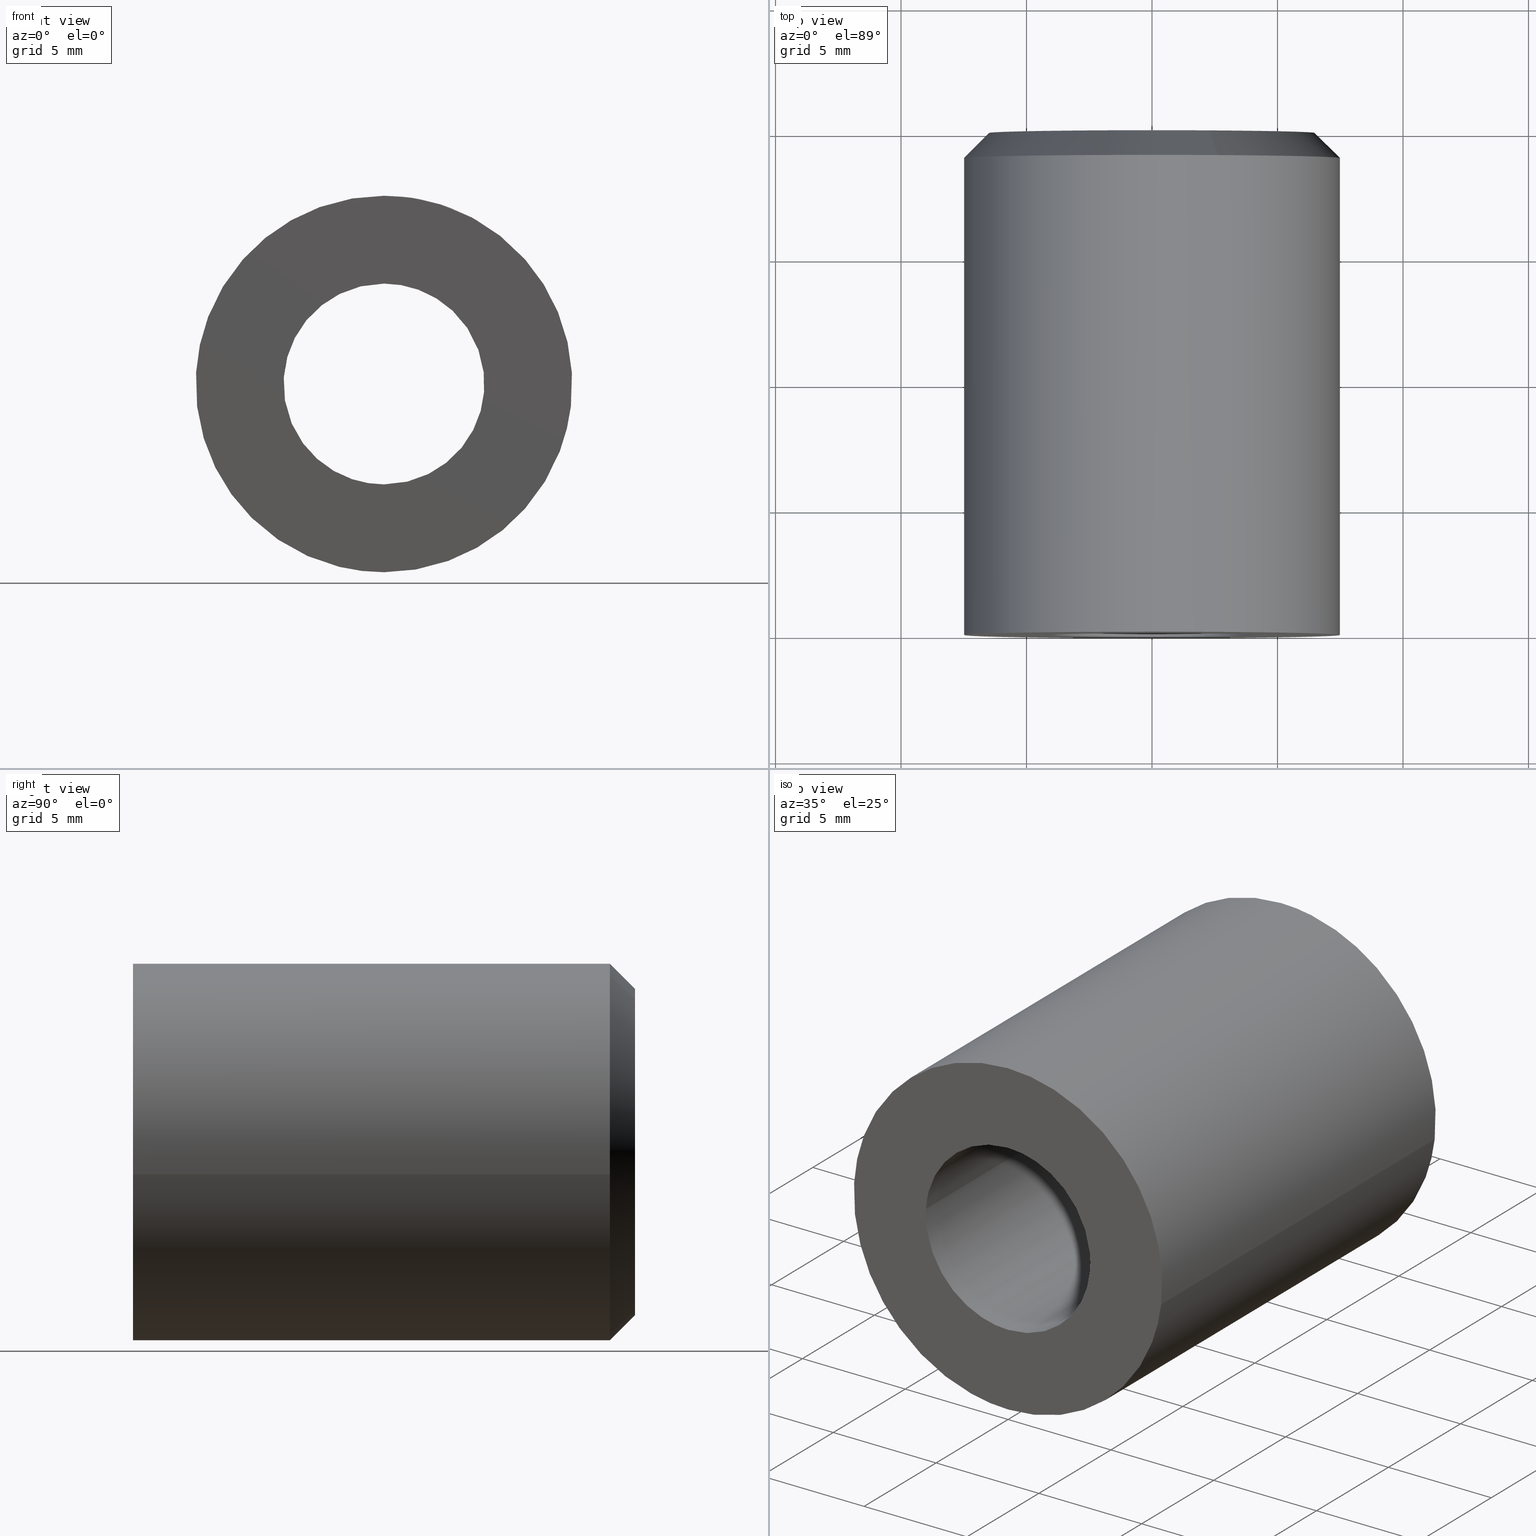
[diagram: canonical four-view strip — front | top / right | iso, engineering-drawing reading convention]
A machine part, canonical four-view strip (front | top / right | iso — engineering-drawing reading convention). The complete STEP part file that produces these views, byte-faithful:
ISO-10303-21;
HEADER;
/****************************************************************
 * Generated by software with PDE/Lib inside                    *
 * PDElib Version 4.4.1-0003, patched  Thursday August 19 11:58 *
 * International Technegroup Inc. (www.iti-oh.com)              *
 ****************************************************************/
FILE_DESCRIPTION((''),'2;1');
FILE_NAME('','2005-12-14T16:28:31',(''),(''),'','CADfix','');
FILE_SCHEMA(('AUTOMOTIVE_DESIGN'));
ENDSEC;
DATA;
#5=APPLICATION_CONTEXT('automotive design');
#6=APPLICATION_PROTOCOL_DEFINITION('Draft International Standard','automotive_design',1998,#5);
#7=PRODUCT_CONTEXT('None',#5,'mechanical');
#8=PRODUCT('boss','','None',(#7));
#9=PRODUCT_RELATED_PRODUCT_CATEGORY('part','description',(#8));
#10=PRODUCT_DEFINITION_FORMATION('None','None',#8);
#11=PRODUCT_DEFINITION_CONTEXT('part definition',#5,'design');
#12=PRODUCT_DEFINITION('None','None',#10,#11);
#18=(NAMED_UNIT(*)PLANE_ANGLE_UNIT()SI_UNIT($,.RADIAN.));
#19=DIMENSIONAL_EXPONENTS(0.0,0.0,0.0,0.0,0.0,0.0,0.0);
#20=PLANE_ANGLE_MEASURE_WITH_UNIT(PLANE_ANGLE_MEASURE(0.017453292500000),#18);
#24=(CONVERSION_BASED_UNIT('DEGREE',#20)NAMED_UNIT(#19)PLANE_ANGLE_UNIT());
#28=(NAMED_UNIT(*)SI_UNIT($,.STERADIAN.)SOLID_ANGLE_UNIT());
#32=(LENGTH_UNIT()NAMED_UNIT(*)SI_UNIT(.MILLI.,.METRE.));
#34=UNCERTAINTY_MEASURE_WITH_UNIT(LENGTH_MEASURE(0.001000000000000),#32,'DISTANCE_ACCURACY_VALUE','');
#36=(GEOMETRIC_REPRESENTATION_CONTEXT(3)GLOBAL_UNCERTAINTY_ASSIGNED_CONTEXT((#34))GLOBAL_UNIT_ASSIGNED_CONTEXT((#24,#28,#32))REPRESENTATION_CONTEXT('None','None'));
#37=AXIS2_PLACEMENT_3D('',#38,#39,#40);
#38=CARTESIAN_POINT('',(0.0,0.0,0.0));
#39=DIRECTION('',(0.0,0.0,1.0));
#40=DIRECTION('',(1.0,0.0,0.0));
#41=ADVANCED_BREP_SHAPE_REPRESENTATION('',(#37,#753),#36);
#42=PRODUCT_DEFINITION_SHAPE('','',#12);
#43=SHAPE_DEFINITION_REPRESENTATION(#42,#41);
#44=CARTESIAN_POINT('',(2.276726384185428,20.025000000000006,6.061529672578851));
#45=CARTESIAN_POINT('',(1.366156699857268,20.025000000000009,6.403542025389346));
#46=CARTESIAN_POINT('',(0.395289293488199,20.024999999999999,6.462922819781583));
#47=CARTESIAN_POINT('',(-6.067633526293384,20.025000000000009,6.858212113269781));
#48=CARTESIAN_POINT('',(-6.462922819781583,20.024999999999999,0.395289293488199));
#49=CARTESIAN_POINT('',(2.646145018530576,18.974374999999991,7.045065520031083));
#50=CARTESIAN_POINT('',(1.587827492565770,18.974374999999998,7.442572348234865));
#51=CARTESIAN_POINT('',(0.459428415337008,18.974374999999998,7.511588192373565));
#52=CARTESIAN_POINT('',(-7.052159777036557,18.974375000000002,7.971016607710572));
#53=CARTESIAN_POINT('',(-7.511588192373565,18.974374999999998,0.459428415337008));
#61=(BOUNDED_SURFACE()B_SPLINE_SURFACE(2,1,((#44,#49),(#45,#50),(#46,#51),(#47,#52),(#48,#53)),.UNSPECIFIED.,.F.,.F.,.U.)B_SPLINE_SURFACE_WITH_KNOTS((3,2,3),(2,2),(0.0,2.493772752267220,14.962636513603320),(0.0,1.0),.UNSPECIFIED.)GEOMETRIC_REPRESENTATION_ITEM()RATIONAL_B_SPLINE_SURFACE(((0.906274169979695,0.906274169979695),(0.941421356237309,0.941421356237309),(1.0,1.0),(0.707106781186548,0.707106781186548),(1.0,1.0)))REPRESENTATION_ITEM('')SURFACE());
#62=CARTESIAN_POINT('',(2.637134807943279,18.999999999999371,7.021076840823168));
#63=VERTEX_POINT('',#62);
#64=CARTESIAN_POINT('',(0.0,19.0,7.500000000000000));
#65=VERTEX_POINT('',#64);
#66=CARTESIAN_POINT('',(2.637134807943280,18.999999999999368,7.021076840823168));
#67=CARTESIAN_POINT('',(1.362055395507618,19.0,7.500000000000000));
#68=CARTESIAN_POINT('',(0.0,19.0,7.500000000000000));
#76=(BOUNDED_CURVE()B_SPLINE_CURVE(2,(#66,#67,#68),.UNSPECIFIED.,.F.,.U.)B_SPLINE_CURVE_WITH_KNOTS((3,3),(0.440284170898627,0.500000000000000),.UNSPECIFIED.)CURVE()GEOMETRIC_REPRESENTATION_ITEM()RATIONAL_B_SPLINE_CURVE((0.893499554635421,0.930038554401540,1.0))REPRESENTATION_ITEM(''));
#77=EDGE_CURVE('',#63,#65,#76,.T.);
#78=ORIENTED_EDGE('',*,*,#77,.F.);
#79=CARTESIAN_POINT('',(2.285516833559040,19.999999999998650,6.084933262044523));
#80=VERTEX_POINT('',#79);
#81=CARTESIAN_POINT('',(2.285516833559040,19.999999999998650,6.084933262044523));
#82=CARTESIAN_POINT('',(2.637134807943279,18.999999999999371,7.021076840823168));
#83=QUASI_UNIFORM_CURVE('',1,(#81,#82),.UNSPECIFIED.,.F.,.U.);
#84=EDGE_CURVE('',#80,#63,#83,.T.);
#85=ORIENTED_EDGE('',*,*,#84,.F.);
#86=CARTESIAN_POINT('',(0.0,20.0,6.500000000000000));
#87=VERTEX_POINT('',#86);
#88=CARTESIAN_POINT('',(2.285516833559040,19.999999999998646,6.084933262044523));
#89=CARTESIAN_POINT('',(1.180448009448671,20.0,6.500000000000001));
#90=CARTESIAN_POINT('',(0.0,20.0,6.500000000000000));
#98=(BOUNDED_CURVE()B_SPLINE_CURVE(2,(#88,#89,#90),.UNSPECIFIED.,.F.,.U.)B_SPLINE_CURVE_WITH_KNOTS((3,3),(0.440284170898217,0.500000000000000),.UNSPECIFIED.)CURVE()GEOMETRIC_REPRESENTATION_ITEM()RATIONAL_B_SPLINE_CURVE((0.893499554634918,0.930038554401058,1.0))REPRESENTATION_ITEM(''));
#99=EDGE_CURVE('',#80,#87,#98,.T.);
#100=ORIENTED_EDGE('',*,*,#99,.T.);
#101=CARTESIAN_POINT('',(-6.487876189743154,19.999999999998099,0.396815506990952));
#102=VERTEX_POINT('',#101);
#103=CARTESIAN_POINT('',(0.0,20.0,6.500000000000000));
#104=CARTESIAN_POINT('',(-6.114589434860092,19.999999999999996,6.500000000000000));
#105=CARTESIAN_POINT('',(-6.487876189743154,19.999999999998103,0.396815506990952));
#113=(BOUNDED_CURVE()B_SPLINE_CURVE(2,(#103,#104,#105),.UNSPECIFIED.,.F.,.U.)B_SPLINE_CURVE_WITH_KNOTS((3,3),(0.500000000000000,0.739332962241210),.UNSPECIFIED.)CURVE()GEOMETRIC_REPRESENTATION_ITEM()RATIONAL_B_SPLINE_CURVE((1.0,0.719603993284054,0.976072041671576))REPRESENTATION_ITEM(''));
#114=EDGE_CURVE('',#87,#102,#113,.T.);
#115=ORIENTED_EDGE('',*,*,#114,.T.);
#116=CARTESIAN_POINT('',(-7.486011170110235,19.000000004526569,0.457860997528976));
#117=VERTEX_POINT('',#116);
#118=CARTESIAN_POINT('',(-6.487876189743154,19.999999999998099,0.396815506990952));
#119=CARTESIAN_POINT('',(-7.486011170110235,19.000000004526569,0.457860997528976));
#120=QUASI_UNIFORM_CURVE('',1,(#118,#119),.UNSPECIFIED.,.F.,.U.);
#121=EDGE_CURVE('',#102,#117,#120,.T.);
#122=ORIENTED_EDGE('',*,*,#121,.T.);
#123=CARTESIAN_POINT('',(0.0,19.0,7.500000000000000));
#124=CARTESIAN_POINT('',(-7.055298380458022,18.999999999999996,7.499999999999999));
#125=CARTESIAN_POINT('',(-7.486011170110235,19.000000004526569,0.457860997528976));
#133=(BOUNDED_CURVE()B_SPLINE_CURVE(2,(#123,#124,#125),.UNSPECIFIED.,.F.,.U.)B_SPLINE_CURVE_WITH_KNOTS((3,3),(0.500000000000000,0.739333032512299),.UNSPECIFIED.)CURVE()GEOMETRIC_REPRESENTATION_ITEM()RATIONAL_B_SPLINE_CURVE((1.0,0.719603910956352,0.976072192275943))REPRESENTATION_ITEM(''));
#134=EDGE_CURVE('',#65,#117,#133,.T.);
#135=ORIENTED_EDGE('',*,*,#134,.F.);
#136=EDGE_LOOP('',(#78,#85,#100,#115,#122,#135));
#137=FACE_OUTER_BOUND('',#136,.T.);
#138=ADVANCED_FACE('',(#137),#61,.T.);
#139=CARTESIAN_POINT('',(-6.462922819781583,20.024999999999999,0.395289293488199));
#140=CARTESIAN_POINT('',(-6.858212113269783,20.025000000000009,-6.067633526293386));
#141=CARTESIAN_POINT('',(-0.395289293488199,20.024999999999999,-6.462922819781583));
#142=CARTESIAN_POINT('',(6.067633526293384,20.025000000000009,-6.858212113269783));
#143=CARTESIAN_POINT('',(6.462922819781583,20.024999999999999,-0.395289293488199));
#144=CARTESIAN_POINT('',(6.754961018078985,20.024999999999999,4.379493042174844));
#145=CARTESIAN_POINT('',(2.276726384185428,20.025000000000006,6.061529672578851));
#146=CARTESIAN_POINT('',(-7.511588192373565,18.974374999999998,0.459428415337008));
#147=CARTESIAN_POINT('',(-7.971016607710572,18.974375000000002,-7.052159777036557));
#148=CARTESIAN_POINT('',(-0.459428415337008,18.974374999999998,-7.511588192373565));
#149=CARTESIAN_POINT('',(7.052159777036557,18.974375000000002,-7.971016607710572));
#150=CARTESIAN_POINT('',(7.511588192373565,18.974374999999998,-0.459428415337009));
#151=CARTESIAN_POINT('',(7.851012125356095,18.974375000000002,5.090103834056696));
#152=CARTESIAN_POINT('',(2.646145018530576,18.974374999999991,7.045065520031083));
#160=(BOUNDED_SURFACE()B_SPLINE_SURFACE(2,1,((#139,#146),(#140,#147),(#141,#148),(#142,#149),(#143,#150),(#144,#151),(#145,#152)),.UNSPECIFIED.,.F.,.F.,.U.)B_SPLINE_SURFACE_WITH_KNOTS((3,2,2,3),(2,2),(0.0,12.468863761336101,24.937727522672201,34.912818531741081),(0.0,1.0),.UNSPECIFIED.)GEOMETRIC_REPRESENTATION_ITEM()RATIONAL_B_SPLINE_SURFACE(((1.0,1.0),(0.707106781186548,0.707106781186548),(1.0,1.0),(0.707106781186548,0.707106781186548),(1.0,1.0),(0.765685424949238,0.765685424949238),(0.906274169979695,0.906274169979695)))REPRESENTATION_ITEM('')SURFACE());
#161=CARTESIAN_POINT('',(7.447571630219821,19.0,-0.885255224634380));
#162=VERTEX_POINT('',#161);
#163=CARTESIAN_POINT('',(7.447571630219821,19.000000000000004,-0.885255224634380));
#164=CARTESIAN_POINT('',(7.500000000000001,19.0,-0.444180121628244));
#165=CARTESIAN_POINT('',(7.500000000000000,19.0,-1.836910E-016));
#166=CARTESIAN_POINT('',(7.500000000000000,19.0,5.194571967698237));
#167=CARTESIAN_POINT('',(2.637134807943279,18.999999999999361,7.021076840823170));
#175=(BOUNDED_CURVE()B_SPLINE_CURVE(2,(#163,#164,#165,#166,#167),.UNSPECIFIED.,.F.,.U.)B_SPLINE_CURVE_WITH_KNOTS((3,2,3),(0.229562508355085,0.250000000000000,0.440284170898627),.UNSPECIFIED.)CURVE()GEOMETRIC_REPRESENTATION_ITEM()RATIONAL_B_SPLINE_CURVE((0.956026822474627,0.976055989150591,1.0,0.777068226785008,0.893499554635421))REPRESENTATION_ITEM(''));
#176=EDGE_CURVE('',#162,#63,#175,.T.);
#177=ORIENTED_EDGE('',*,*,#176,.F.);
#178=CARTESIAN_POINT('',(0.0,19.0,-7.500000000000000));
#179=VERTEX_POINT('',#178);
#180=CARTESIAN_POINT('',(0.0,19.0,-7.500000000000000));
#181=CARTESIAN_POINT('',(6.661310327508277,19.0,-7.500000000000000));
#182=CARTESIAN_POINT('',(7.447571630219821,19.000000000000004,-0.885255224634380));
#190=(BOUNDED_CURVE()B_SPLINE_CURVE(2,(#180,#181,#182),.UNSPECIFIED.,.F.,.U.)B_SPLINE_CURVE_WITH_KNOTS((3,3),(0.0,0.229562508355085),.UNSPECIFIED.)CURVE()GEOMETRIC_REPRESENTATION_ITEM()RATIONAL_B_SPLINE_CURVE((1.0,0.731050792035956,0.956026822474627))REPRESENTATION_ITEM(''));
#191=EDGE_CURVE('',#179,#162,#190,.T.);
#192=ORIENTED_EDGE('',*,*,#191,.F.);
#193=CARTESIAN_POINT('',(-7.486011170110235,19.000000004526569,0.457860997528976));
#194=CARTESIAN_POINT('',(-7.500000000000001,19.0,0.229144196112307));
#195=CARTESIAN_POINT('',(-7.500000000000000,19.0,-1.836910E-016));
#196=CARTESIAN_POINT('',(-7.500000000000000,18.999999999999996,-7.500000000000000));
#197=CARTESIAN_POINT('',(0.0,19.0,-7.500000000000000));
#205=(BOUNDED_CURVE()B_SPLINE_CURVE(2,(#193,#194,#195,#196,#197),.UNSPECIFIED.,.F.,.U.)B_SPLINE_CURVE_WITH_KNOTS((3,2,3),(0.739333032512299,0.750000000000000,1.0),.UNSPECIFIED.)CURVE()GEOMETRIC_REPRESENTATION_ITEM()RATIONAL_B_SPLINE_CURVE((0.976072192275943,0.987502870230195,1.0,0.707106781186547,1.0))REPRESENTATION_ITEM(''));
#206=EDGE_CURVE('',#117,#179,#205,.T.);
#207=ORIENTED_EDGE('',*,*,#206,.F.);
#208=ORIENTED_EDGE('',*,*,#121,.F.);
#209=CARTESIAN_POINT('',(0.0,20.0,-6.500000000000000));
#210=VERTEX_POINT('',#209);
#211=CARTESIAN_POINT('',(-6.487876189743154,19.999999999998099,0.396815506990952));
#212=CARTESIAN_POINT('',(-6.500000000000000,20.000000000000004,0.198592961455134));
#213=CARTESIAN_POINT('',(-6.500000000000000,20.0,-1.836910E-016));
#214=CARTESIAN_POINT('',(-6.500000000000000,20.0,-6.500000000000000));
#215=CARTESIAN_POINT('',(0.0,20.0,-6.500000000000000));
#223=(BOUNDED_CURVE()B_SPLINE_CURVE(2,(#211,#212,#213,#214,#215),.UNSPECIFIED.,.F.,.U.)B_SPLINE_CURVE_WITH_KNOTS((3,2,3),(0.739332962241209,0.750000000000000,1.0),.UNSPECIFIED.)CURVE()GEOMETRIC_REPRESENTATION_ITEM()RATIONAL_B_SPLINE_CURVE((0.976072041671575,0.987502787902493,1.0,0.707106781186547,1.0))REPRESENTATION_ITEM(''));
#224=EDGE_CURVE('',#102,#210,#223,.T.);
#225=ORIENTED_EDGE('',*,*,#224,.T.);
#226=CARTESIAN_POINT('',(0.0,20.0,-6.500000000000000));
#227=CARTESIAN_POINT('',(6.500000000000000,20.0,-6.500000000000000));
#228=CARTESIAN_POINT('',(6.500000000000000,20.0,-1.836910E-016));
#229=CARTESIAN_POINT('',(6.500000000000001,20.000000000000007,4.501962371992629));
#230=CARTESIAN_POINT('',(2.285516833559040,19.999999999998654,6.084933262044523));
#238=(BOUNDED_CURVE()B_SPLINE_CURVE(2,(#226,#227,#228,#229,#230),.UNSPECIFIED.,.F.,.U.)B_SPLINE_CURVE_WITH_KNOTS((3,2,3),(0.0,0.250000000000000,0.440284170898216),.UNSPECIFIED.)CURVE()GEOMETRIC_REPRESENTATION_ITEM()RATIONAL_B_SPLINE_CURVE((1.0,0.707106781186547,1.0,0.777068226785489,0.893499554634918))REPRESENTATION_ITEM(''));
#239=EDGE_CURVE('',#210,#80,#238,.T.);
#240=ORIENTED_EDGE('',*,*,#239,.T.);
#241=ORIENTED_EDGE('',*,*,#84,.T.);
#242=EDGE_LOOP('',(#177,#192,#207,#208,#225,#240,#241));
#243=FACE_OUTER_BOUND('',#242,.T.);
#244=ADVANCED_FACE('',(#243),#160,.T.);
#245=CARTESIAN_POINT('',(7.447571447727496,19.475000000000009,-0.885256759925689));
#246=CARTESIAN_POINT('',(7.472907115864541,19.475000000000012,-0.672110464784833));
#247=CARTESIAN_POINT('',(7.486010988164000,19.475000000000009,-0.457864046511427));
#248=CARTESIAN_POINT('',(7.943875034675429,19.475000000000009,7.028146941652573));
#249=CARTESIAN_POINT('',(0.457864046511427,19.475000000000009,7.486010988164000));
#250=CARTESIAN_POINT('',(-7.028146941652573,19.475000000000009,7.943875034675429));
#251=CARTESIAN_POINT('',(-7.486010988164000,19.475000000000009,0.457864046511427));
#252=CARTESIAN_POINT('',(7.447571447727496,-0.486874999999998,-0.885256759925689));
#253=CARTESIAN_POINT('',(7.472907115864541,-0.486874999999998,-0.672110464784833));
#254=CARTESIAN_POINT('',(7.486010988164000,-0.486874999999998,-0.457864046511427));
#255=CARTESIAN_POINT('',(7.943875034675429,-0.486874999999998,7.028146941652573));
#256=CARTESIAN_POINT('',(0.457864046511427,-0.486874999999998,7.486010988164000));
#257=CARTESIAN_POINT('',(-7.028146941652573,-0.486874999999998,7.943875034675429));
#258=CARTESIAN_POINT('',(-7.486010988164000,-0.486874999999998,0.457864046511427));
#266=(BOUNDED_SURFACE()B_SPLINE_SURFACE(2,1,((#245,#252),(#246,#253),(#247,#254),(#248,#255),(#249,#256),(#250,#257),(#251,#258)),.UNSPECIFIED.,.F.,.F.,.U.)B_SPLINE_SURFACE_WITH_KNOTS((3,2,2,3),(2,2),(0.0,0.497056274847715,12.923463146040559,25.349870017233410),(0.0,19.961875000000010),.UNSPECIFIED.)GEOMETRIC_REPRESENTATION_ITEM()RATIONAL_B_SPLINE_SURFACE(((0.977505800795127,0.977505800795127),(0.988284271247462,0.988284271247462),(1.0,1.0),(0.707106781186548,0.707106781186548),(1.0,1.0),(0.707106781186548,0.707106781186548),(1.0,1.0)))REPRESENTATION_ITEM('')SURFACE());
#267=ORIENTED_EDGE('',*,*,#176,.T.);
#268=ORIENTED_EDGE('',*,*,#77,.T.);
#269=ORIENTED_EDGE('',*,*,#134,.T.);
#270=CARTESIAN_POINT('',(-7.486011356600631,-3.557742E-016,0.457858022546224));
#271=VERTEX_POINT('',#270);
#272=CARTESIAN_POINT('',(-7.486011170110235,19.000000004526569,0.457860997528976));
#273=CARTESIAN_POINT('',(-7.486011356600631,-3.557742E-016,0.457858022546224));
#274=QUASI_UNIFORM_CURVE('',1,(#272,#273),.UNSPECIFIED.,.F.,.U.);
#275=EDGE_CURVE('',#117,#271,#274,.T.);
#276=ORIENTED_EDGE('',*,*,#275,.T.);
#277=CARTESIAN_POINT('',(0.0,-1.377682E-015,7.500000000000000));
#278=VERTEX_POINT('',#277);
#279=CARTESIAN_POINT('',(0.0,-1.377682E-015,7.500000000000000));
#280=CARTESIAN_POINT('',(-7.055301189773867,-1.377682E-015,7.500000000000000));
#281=CARTESIAN_POINT('',(-7.486011356600631,-3.557742E-016,0.457858022546224));
#289=(BOUNDED_CURVE()B_SPLINE_CURVE(2,(#279,#280,#281),.UNSPECIFIED.,.F.,.U.)B_SPLINE_CURVE_WITH_KNOTS((3,3),(0.500000000000000,0.739333101089743),.UNSPECIFIED.)CURVE()GEOMETRIC_REPRESENTATION_ITEM()RATIONAL_B_SPLINE_CURVE((1.0,0.719603830612879,0.976072339250594))REPRESENTATION_ITEM(''));
#290=EDGE_CURVE('',#278,#271,#289,.T.);
#291=ORIENTED_EDGE('',*,*,#290,.F.);
#292=CARTESIAN_POINT('',(7.447571628019151,-1.569064E-015,-0.885255243148447));
#293=VERTEX_POINT('',#292);
#294=CARTESIAN_POINT('',(7.447571628019152,-1.569064E-015,-0.885255243148447));
#295=CARTESIAN_POINT('',(7.500000000000000,-1.377682E-015,-0.444180130983140));
#296=CARTESIAN_POINT('',(7.500000000000000,-1.377682E-015,-1.836910E-016));
#297=CARTESIAN_POINT('',(7.500000000000000,-1.377682E-015,7.500000000000000));
#298=CARTESIAN_POINT('',(0.0,-1.377682E-015,7.500000000000000));
#306=(BOUNDED_CURVE()B_SPLINE_CURVE(2,(#294,#295,#296,#297,#298),.UNSPECIFIED.,.F.,.U.)B_SPLINE_CURVE_WITH_KNOTS((3,2,3),(0.229562507934956,0.250000000000000,0.500000000000000),.UNSPECIFIED.)CURVE()GEOMETRIC_REPRESENTATION_ITEM()RATIONAL_B_SPLINE_CURVE((0.956026821651157,0.976055988658380,1.0,0.707106781186547,1.0))REPRESENTATION_ITEM(''));
#307=EDGE_CURVE('',#293,#278,#306,.T.);
#308=ORIENTED_EDGE('',*,*,#307,.F.);
#309=CARTESIAN_POINT('',(7.447571630219821,19.0,-0.885255224634380));
#310=CARTESIAN_POINT('',(7.447571628019151,-1.569064E-015,-0.885255243148447));
#311=QUASI_UNIFORM_CURVE('',1,(#309,#310),.UNSPECIFIED.,.F.,.U.);
#312=EDGE_CURVE('',#162,#293,#311,.T.);
#313=ORIENTED_EDGE('',*,*,#312,.F.);
#314=EDGE_LOOP('',(#267,#268,#269,#276,#291,#308,#313));
#315=FACE_OUTER_BOUND('',#314,.T.);
#316=ADVANCED_FACE('',(#315),#266,.T.);
#317=CARTESIAN_POINT('',(-7.486010988164000,19.475000000000009,0.457864046511427));
#318=CARTESIAN_POINT('',(-7.943875034675429,19.475000000000009,-7.028146941652573));
#319=CARTESIAN_POINT('',(-0.457864046511427,19.475000000000009,-7.486010988164000));
#320=CARTESIAN_POINT('',(6.611576181296258,19.475000000000009,-7.918396475493956));
#321=CARTESIAN_POINT('',(7.447571447727496,19.475000000000009,-0.885256759925689));
#322=CARTESIAN_POINT('',(-7.486010988164000,-0.486874999999998,0.457864046511427));
#323=CARTESIAN_POINT('',(-7.943875034675429,-0.486874999999998,-7.028146941652573));
#324=CARTESIAN_POINT('',(-0.457864046511427,-0.486874999999998,-7.486010988164000));
#325=CARTESIAN_POINT('',(6.611576181296258,-0.486874999999998,-7.918396475493956));
#326=CARTESIAN_POINT('',(7.447571447727496,-0.486874999999998,-0.885256759925689));
#334=(BOUNDED_SURFACE()B_SPLINE_SURFACE(2,1,((#317,#322),(#318,#323),(#319,#324),(#320,#325),(#321,#326)),.UNSPECIFIED.,.F.,.F.,.U.)B_SPLINE_SURFACE_WITH_KNOTS((3,2,3),(2,2),(0.0,12.426406871192849,24.355757467537980),(0.0,19.961875000000010),.UNSPECIFIED.)GEOMETRIC_REPRESENTATION_ITEM()RATIONAL_B_SPLINE_SURFACE(((1.0,1.0),(0.707106781186548,0.707106781186548),(1.0,1.0),(0.718822509939086,0.718822509939086),(0.977505800795127,0.977505800795127)))REPRESENTATION_ITEM('')SURFACE());
#335=ORIENTED_EDGE('',*,*,#191,.T.);
#336=ORIENTED_EDGE('',*,*,#312,.T.);
#337=CARTESIAN_POINT('',(0.0,-1.377682E-015,-7.500000000000000));
#338=VERTEX_POINT('',#337);
#339=CARTESIAN_POINT('',(0.0,-1.377682E-015,-7.500000000000000));
#340=CARTESIAN_POINT('',(6.661310310832219,-1.377682E-015,-7.500000000000002));
#341=CARTESIAN_POINT('',(7.447571628019152,-1.569064E-015,-0.885255243148447));
#349=(BOUNDED_CURVE()B_SPLINE_CURVE(2,(#339,#340,#341),.UNSPECIFIED.,.F.,.U.)B_SPLINE_CURVE_WITH_KNOTS((3,3),(0.0,0.229562507934956),.UNSPECIFIED.)CURVE()GEOMETRIC_REPRESENTATION_ITEM()RATIONAL_B_SPLINE_CURVE((1.0,0.731050792528168,0.956026821651157))REPRESENTATION_ITEM(''));
#350=EDGE_CURVE('',#338,#293,#349,.T.);
#351=ORIENTED_EDGE('',*,*,#350,.F.);
#352=CARTESIAN_POINT('',(-7.486011356600631,-3.557742E-016,0.457858022546224));
#353=CARTESIAN_POINT('',(-7.500000000000000,-1.377682E-015,0.229142704311694));
#354=CARTESIAN_POINT('',(-7.500000000000000,-1.377682E-015,-1.836910E-016));
#355=CARTESIAN_POINT('',(-7.500000000000000,-1.377682E-015,-7.500000000000000));
#356=CARTESIAN_POINT('',(0.0,-1.377682E-015,-7.500000000000000));
#364=(BOUNDED_CURVE()B_SPLINE_CURVE(2,(#352,#353,#354,#355,#356),.UNSPECIFIED.,.F.,.U.)B_SPLINE_CURVE_WITH_KNOTS((3,2,3),(0.739333101089743,0.750000000000000,1.0),.UNSPECIFIED.)CURVE()GEOMETRIC_REPRESENTATION_ITEM()RATIONAL_B_SPLINE_CURVE((0.976072339250594,0.987502950573668,1.0,0.707106781186547,1.0))REPRESENTATION_ITEM(''));
#365=EDGE_CURVE('',#271,#338,#364,.T.);
#366=ORIENTED_EDGE('',*,*,#365,.F.);
#367=ORIENTED_EDGE('',*,*,#275,.F.);
#368=ORIENTED_EDGE('',*,*,#206,.T.);
#369=EDGE_LOOP('',(#335,#336,#351,#366,#367,#368));
#370=FACE_OUTER_BOUND('',#369,.T.);
#371=ADVANCED_FACE('',(#370),#334,.T.);
#372=CARTESIAN_POINT('',(3.980315739117261,20.168412500000002,0.400338886225068));
#373=CARTESIAN_POINT('',(3.977103421615057,20.168412500000009,0.428308385659948));
#374=CARTESIAN_POINT('',(3.591260610344325,20.168412500000002,3.787823839652829));
#375=CARTESIAN_POINT('',(0.244194158139428,20.168412500000009,3.992539193687467));
#376=CARTESIAN_POINT('',(-3.748345035548039,20.168412499999999,4.236733351826894));
#377=CARTESIAN_POINT('',(-3.994158025686370,20.168412500000013,0.217726488917307));
#378=CARTESIAN_POINT('',(-3.995767991604379,20.168412500000002,0.191403778836379));
#379=CARTESIAN_POINT('',(3.980315739117261,-0.504210312500000,0.400338886225068));
#380=CARTESIAN_POINT('',(3.977103421615057,-0.504210312500000,0.428308385659948));
#381=CARTESIAN_POINT('',(3.591260610344325,-0.504210312500000,3.787823839652829));
#382=CARTESIAN_POINT('',(0.244194158139428,-0.504210312500000,3.992539193687467));
#383=CARTESIAN_POINT('',(-3.748345035548039,-0.504210312500000,4.236733351826894));
#384=CARTESIAN_POINT('',(-3.994158025686370,-0.504210312500000,0.217726488917307));
#385=CARTESIAN_POINT('',(-3.995767991604379,-0.504210312500000,0.191403778836379));
#393=(BOUNDED_SURFACE()B_SPLINE_SURFACE(2,1,((#372,#379),(#373,#380),(#374,#381),(#375,#382),(#376,#383),(#377,#384),(#378,#385)),.UNSPECIFIED.,.F.,.F.,.U.)B_SPLINE_SURFACE_WITH_KNOTS((3,1,2,1,3),(2,2),(0.0,0.062301489036522,5.894428447249697,12.521845445219220,12.584150027941480),(0.0,20.672622812500009),.UNSPECIFIED.)GEOMETRIC_REPRESENTATION_ITEM()RATIONAL_B_SPLINE_SURFACE(((0.942326063697294,0.942326063697294),(0.940233507941946,0.940233507941946),(0.742253967444162,0.742253967444162),(1.0,1.0),(0.707106781186548,0.707106781186548),(1.002753499558869,1.002753499558869),(1.005506999117739,1.005506999117739)))REPRESENTATION_ITEM('')SURFACE());
#394=CARTESIAN_POINT('',(3.973876773741819,19.676500000000001,0.456402658970466));
#395=VERTEX_POINT('',#394);
#396=CARTESIAN_POINT('',(0.0,19.676500000000001,4.0));
#397=VERTEX_POINT('',#396);
#398=CARTESIAN_POINT('',(3.973876773741819,19.676499999999994,0.456402658970466));
#399=CARTESIAN_POINT('',(3.566892022859347,19.676499999999994,4.000000000000001));
#400=CARTESIAN_POINT('',(0.0,19.676500000000001,4.0));
#408=(BOUNDED_CURVE()B_SPLINE_CURVE(2,(#398,#399,#400),.UNSPECIFIED.,.F.,.U.)B_SPLINE_CURVE_WITH_KNOTS((3,3),(0.269767755877378,0.500000000000000),.UNSPECIFIED.)CURVE()GEOMETRIC_REPRESENTATION_ITEM()RATIONAL_B_SPLINE_CURVE((0.957343736459148,0.730266147777123,1.0))REPRESENTATION_ITEM(''));
#409=EDGE_CURVE('',#395,#397,#408,.T.);
#410=ORIENTED_EDGE('',*,*,#409,.F.);
#411=CARTESIAN_POINT('',(3.973877159715840,4.142001E-016,0.456399298287494));
#412=VERTEX_POINT('',#411);
#413=CARTESIAN_POINT('',(3.973876773741819,19.676500000000001,0.456402658970466));
#414=CARTESIAN_POINT('',(3.973877159715840,4.142001E-016,0.456399298287494));
#415=QUASI_UNIFORM_CURVE('',1,(#413,#414),.UNSPECIFIED.,.F.,.U.);
#416=EDGE_CURVE('',#395,#412,#415,.T.);
#417=ORIENTED_EDGE('',*,*,#416,.T.);
#418=CARTESIAN_POINT('',(0.0,0.0,4.0));
#419=VERTEX_POINT('',#418);
#420=CARTESIAN_POINT('',(3.973877159715840,4.142001E-016,0.456399298287494));
#421=CARTESIAN_POINT('',(3.566895059196512,0.0,4.0));
#422=CARTESIAN_POINT('',(0.0,0.0,4.0));
#430=(BOUNDED_CURVE()B_SPLINE_CURVE(2,(#420,#421,#422),.UNSPECIFIED.,.F.,.U.)B_SPLINE_CURVE_WITH_KNOTS((3,3),(0.269767612755097,0.500000000000000),.UNSPECIFIED.)CURVE()GEOMETRIC_REPRESENTATION_ITEM()RATIONAL_B_SPLINE_CURVE((0.957344018781762,0.730265980098941,1.0))REPRESENTATION_ITEM(''));
#431=EDGE_CURVE('',#412,#419,#430,.T.);
#432=ORIENTED_EDGE('',*,*,#431,.T.);
#433=CARTESIAN_POINT('',(-3.992539548623593,-6.938894E-016,0.244188354846649));
#434=VERTEX_POINT('',#433);
#435=CARTESIAN_POINT('',(0.0,0.0,4.0));
#436=CARTESIAN_POINT('',(-3.762829747240873,0.0,4.000000000000000));
#437=CARTESIAN_POINT('',(-3.992539548623593,-6.938894E-016,0.244188354846649));
#445=(BOUNDED_CURVE()B_SPLINE_CURVE(2,(#435,#436,#437),.UNSPECIFIED.,.F.,.U.)B_SPLINE_CURVE_WITH_KNOTS((3,3),(0.500000000000000,0.739333213044698),.UNSPECIFIED.)CURVE()GEOMETRIC_REPRESENTATION_ITEM()RATIONAL_B_SPLINE_CURVE((1.0,0.719603699449491,0.976072579191782))REPRESENTATION_ITEM(''));
#446=EDGE_CURVE('',#419,#434,#445,.T.);
#447=ORIENTED_EDGE('',*,*,#446,.T.);
#448=CARTESIAN_POINT('',(-3.992539218268482,19.676500000000001,0.244193756242729));
#449=VERTEX_POINT('',#448);
#450=CARTESIAN_POINT('',(-3.992539218268482,19.676500000000001,0.244193756242729));
#451=CARTESIAN_POINT('',(-3.992539548623593,-6.938894E-016,0.244188354846649));
#452=QUASI_UNIFORM_CURVE('',1,(#450,#451),.UNSPECIFIED.,.F.,.U.);
#453=EDGE_CURVE('',#449,#434,#452,.T.);
#454=ORIENTED_EDGE('',*,*,#453,.F.);
#455=CARTESIAN_POINT('',(-3.987669334933437,19.676500000002310,0.313836382929125));
#456=VERTEX_POINT('',#455);
#457=CARTESIAN_POINT('',(-3.987669334933436,19.676500000002317,0.313836382929124));
#458=CARTESIAN_POINT('',(-3.990408175146816,19.676500000000004,0.279036118412677));
#459=CARTESIAN_POINT('',(-3.992539218268482,19.676499999999997,0.244193756242729));
#467=(BOUNDED_CURVE()B_SPLINE_CURVE(2,(#457,#458,#459),.UNSPECIFIED.,.F.,.U.)B_SPLINE_CURVE_WITH_KNOTS((3,3),(0.736331300631257,0.739332996979756),.UNSPECIFIED.)CURVE()GEOMETRIC_REPRESENTATION_ITEM()RATIONAL_B_SPLINE_CURVE((0.969723356168664,0.972855511811289,0.976072116122905))REPRESENTATION_ITEM(''));
#468=EDGE_CURVE('',#456,#449,#467,.T.);
#469=ORIENTED_EDGE('',*,*,#468,.F.);
#470=CARTESIAN_POINT('',(0.0,19.676500000000001,4.0));
#471=CARTESIAN_POINT('',(-3.697561966600142,19.676500000000001,4.0));
#472=CARTESIAN_POINT('',(-3.987669334933438,19.676500000002317,0.313836382929124));
#480=(BOUNDED_CURVE()B_SPLINE_CURVE(2,(#470,#471,#472),.UNSPECIFIED.,.F.,.U.)B_SPLINE_CURVE_WITH_KNOTS((3,3),(0.500000000000000,0.736331300631256),.UNSPECIFIED.)CURVE()GEOMETRIC_REPRESENTATION_ITEM()RATIONAL_B_SPLINE_CURVE((1.0,0.723120658606967,0.969723356168663))REPRESENTATION_ITEM(''));
#481=EDGE_CURVE('',#397,#456,#480,.T.);
#482=ORIENTED_EDGE('',*,*,#481,.F.);
#483=EDGE_LOOP('',(#410,#417,#432,#447,#454,#469,#482));
#484=FACE_OUTER_BOUND('',#483,.T.);
#485=ADVANCED_FACE('',(#484),#393,.F.);
#486=CARTESIAN_POINT('',(-3.992539193687467,20.168412500000009,0.244194158139428));
#487=CARTESIAN_POINT('',(-4.236733351826894,20.168412499999999,-3.748345035548039));
#488=CARTESIAN_POINT('',(-0.244194158139428,20.168412500000009,-3.992539193687467));
#489=CARTESIAN_POINT('',(3.748345035548039,20.168412499999999,-4.236733351826894));
#490=CARTESIAN_POINT('',(3.992539193687467,20.168412500000009,-0.244194158139428));
#491=CARTESIAN_POINT('',(4.014014553579111,20.168412500000009,0.106924872386187));
#492=CARTESIAN_POINT('',(3.973876773742854,20.168412500000002,0.456402658961442));
#493=CARTESIAN_POINT('',(-3.992539193687467,-0.504210312500000,0.244194158139428));
#494=CARTESIAN_POINT('',(-4.236733351826894,-0.504210312500000,-3.748345035548039));
#495=CARTESIAN_POINT('',(-0.244194158139428,-0.504210312500000,-3.992539193687467));
#496=CARTESIAN_POINT('',(3.748345035548039,-0.504210312500000,-4.236733351826894));
#497=CARTESIAN_POINT('',(3.992539193687467,-0.504210312500000,-0.244194158139428));
#498=CARTESIAN_POINT('',(4.014014553579111,-0.504210312500000,0.106924872386187));
#499=CARTESIAN_POINT('',(3.973876773742854,-0.504210312500000,0.456402658961442));
#507=(BOUNDED_SURFACE()B_SPLINE_SURFACE(2,1,((#486,#493),(#487,#494),(#488,#495),(#489,#496),(#490,#497),(#491,#498),(#492,#499)),.UNSPECIFIED.,.F.,.F.,.U.)B_SPLINE_SURFACE_WITH_KNOTS((3,2,2,3),(2,2),(0.0,6.627416997969518,13.254833995939039,14.050124035695379),(0.0,20.672622812500009),.UNSPECIFIED.)GEOMETRIC_REPRESENTATION_ITEM()RATIONAL_B_SPLINE_SURFACE(((1.0,1.0),(0.707106781186548,0.707106781186548),(1.0,1.0),(0.707106781186548,0.707106781186548),(1.0,1.0),(0.964852813742386,0.964852813742386),(0.938140952186599,0.938140952186599)))REPRESENTATION_ITEM('')SURFACE());
#508=CARTESIAN_POINT('',(3.987669334933435,19.676500000002310,-0.313836382929126));
#509=VERTEX_POINT('',#508);
#510=CARTESIAN_POINT('',(3.987669334933436,19.676500000002310,-0.313836382929126));
#511=CARTESIAN_POINT('',(4.000000000000001,19.676500000000001,-0.157160428048323));
#512=CARTESIAN_POINT('',(4.0,19.676500000000001,-1.836910E-016));
#513=CARTESIAN_POINT('',(4.000000000000001,19.676500000000004,0.228948940110282));
#514=CARTESIAN_POINT('',(3.973876773741819,19.676499999999997,0.456402658970466));
#522=(BOUNDED_CURVE()B_SPLINE_CURVE(2,(#510,#511,#512,#513,#514),.UNSPECIFIED.,.F.,.U.)B_SPLINE_CURVE_WITH_KNOTS((3,2,3),(0.236331300631257,0.250000000000000,0.269767755877378),.UNSPECIFIED.)CURVE()GEOMETRIC_REPRESENTATION_ITEM()RATIONAL_B_SPLINE_CURVE((0.969723356168664,0.983986122579582,1.0,0.976840633409425,0.957343736459148))REPRESENTATION_ITEM(''));
#523=EDGE_CURVE('',#509,#395,#522,.T.);
#524=ORIENTED_EDGE('',*,*,#523,.F.);
#525=CARTESIAN_POINT('',(0.0,19.676500000000001,-4.0));
#526=VERTEX_POINT('',#525);
#527=CARTESIAN_POINT('',(0.0,19.676500000000001,-4.0));
#528=CARTESIAN_POINT('',(3.697561966600156,19.676500000000008,-4.0));
#529=CARTESIAN_POINT('',(3.987669334933435,19.676500000002314,-0.313836382929126));
#537=(BOUNDED_CURVE()B_SPLINE_CURVE(2,(#527,#528,#529),.UNSPECIFIED.,.F.,.U.)B_SPLINE_CURVE_WITH_KNOTS((3,3),(0.0,0.236331300631257),.UNSPECIFIED.)CURVE()GEOMETRIC_REPRESENTATION_ITEM()RATIONAL_B_SPLINE_CURVE((1.0,0.723120658606966,0.969723356168664))REPRESENTATION_ITEM(''));
#538=EDGE_CURVE('',#526,#509,#537,.T.);
#539=ORIENTED_EDGE('',*,*,#538,.F.);
#540=CARTESIAN_POINT('',(-3.992539218268482,19.676499999999997,0.244193756242729));
#541=CARTESIAN_POINT('',(-4.000000000000001,19.676500000000001,0.122210650170782));
#542=CARTESIAN_POINT('',(-4.0,19.676500000000001,-1.836910E-016));
#543=CARTESIAN_POINT('',(-4.000000000000000,19.676499999999997,-4.000000000000000));
#544=CARTESIAN_POINT('',(0.0,19.676500000000001,-4.0));
#552=(BOUNDED_CURVE()B_SPLINE_CURVE(2,(#540,#541,#542,#543,#544),.UNSPECIFIED.,.F.,.U.)B_SPLINE_CURVE_WITH_KNOTS((3,2,3),(0.739332996979755,0.750000000000000,1.0),.UNSPECIFIED.)CURVE()GEOMETRIC_REPRESENTATION_ITEM()RATIONAL_B_SPLINE_CURVE((0.976072116122902,0.987502828601230,1.0,0.707106781186548,1.0))REPRESENTATION_ITEM(''));
#553=EDGE_CURVE('',#449,#526,#552,.T.);
#554=ORIENTED_EDGE('',*,*,#553,.F.);
#555=ORIENTED_EDGE('',*,*,#453,.T.);
#556=CARTESIAN_POINT('',(0.0,0.0,-4.0));
#557=VERTEX_POINT('',#556);
#558=CARTESIAN_POINT('',(-3.992539548623593,-6.938894E-016,0.244188354846649));
#559=CARTESIAN_POINT('',(-4.0,0.0,0.122208143412355));
#560=CARTESIAN_POINT('',(-4.0,0.0,-1.836910E-016));
#561=CARTESIAN_POINT('',(-4.000000000000000,0.0,-4.000000000000000));
#562=CARTESIAN_POINT('',(0.0,0.0,-4.0));
#570=(BOUNDED_CURVE()B_SPLINE_CURVE(2,(#558,#559,#560,#561,#562),.UNSPECIFIED.,.F.,.U.)B_SPLINE_CURVE_WITH_KNOTS((3,2,3),(0.739333213044698,0.750000000000000,1.0),.UNSPECIFIED.)CURVE()GEOMETRIC_REPRESENTATION_ITEM()RATIONAL_B_SPLINE_CURVE((0.976072579191782,0.987503081737056,1.0,0.707106781186548,1.0))REPRESENTATION_ITEM(''));
#571=EDGE_CURVE('',#434,#557,#570,.T.);
#572=ORIENTED_EDGE('',*,*,#571,.T.);
#573=CARTESIAN_POINT('',(0.0,0.0,-4.0));
#574=CARTESIAN_POINT('',(4.000000000000000,0.0,-4.000000000000000));
#575=CARTESIAN_POINT('',(4.0,0.0,-1.836910E-016));
#576=CARTESIAN_POINT('',(4.000000000000000,0.0,0.228947243177165));
#577=CARTESIAN_POINT('',(3.973877159715840,4.142001E-016,0.456399298287494));
#585=(BOUNDED_CURVE()B_SPLINE_CURVE(2,(#573,#574,#575,#576,#577),.UNSPECIFIED.,.F.,.U.)B_SPLINE_CURVE_WITH_KNOTS((3,2,3),(0.0,0.250000000000000,0.269767612755097),.UNSPECIFIED.)CURVE()GEOMETRIC_REPRESENTATION_ITEM()RATIONAL_B_SPLINE_CURVE((1.0,0.707106781186548,1.0,0.976840801087607,0.957344018781762))REPRESENTATION_ITEM(''));
#586=EDGE_CURVE('',#557,#412,#585,.T.);
#587=ORIENTED_EDGE('',*,*,#586,.T.);
#588=ORIENTED_EDGE('',*,*,#416,.F.);
#589=EDGE_LOOP('',(#524,#539,#554,#555,#572,#587,#588));
#590=FACE_OUTER_BOUND('',#589,.T.);
#591=ADVANCED_FACE('',(#590),#507,.F.);
#592=CARTESIAN_POINT('',(3.979606765995942,19.668412499999999,-0.313201844974683));
#593=CARTESIAN_POINT('',(3.666404921021259,19.668412500000002,-4.292808610970625));
#594=CARTESIAN_POINT('',(-0.313201844974683,19.668412499999999,-3.979606765995942));
#595=CARTESIAN_POINT('',(-4.292808610970625,19.668412500000002,-3.666404921021259));
#596=CARTESIAN_POINT('',(-3.979606765995942,19.668412499999999,0.313201844974683));
#597=CARTESIAN_POINT('',(4.318436225555163,20.008289687500000,-0.339868301764457));
#598=CARTESIAN_POINT('',(3.978567923790707,20.008289687500003,-4.658304527319621));
#599=CARTESIAN_POINT('',(-0.339868301764457,20.008289687500000,-4.318436225555163));
#600=CARTESIAN_POINT('',(-4.658304527319621,20.008289687500003,-3.978567923790707));
#601=CARTESIAN_POINT('',(-4.318436225555163,20.008289687500000,0.339868301764457));
#609=(BOUNDED_SURFACE()B_SPLINE_SURFACE(2,1,((#592,#597),(#593,#598),(#594,#599),(#595,#600),(#596,#601)),.UNSPECIFIED.,.F.,.F.,.U.)B_SPLINE_SURFACE_WITH_KNOTS((3,2,3),(2,2),(0.0,7.177144151641651,14.354288303283299),(0.0,0.480658928103731),.UNSPECIFIED.)GEOMETRIC_REPRESENTATION_ITEM()RATIONAL_B_SPLINE_SURFACE(((1.0,1.0),(0.707106781186548,0.707106781186548),(1.0,1.0),(0.707106781186548,0.707106781186548),(1.0,1.0)))REPRESENTATION_ITEM('')SURFACE());
#610=ORIENTED_EDGE('',*,*,#538,.T.);
#611=CARTESIAN_POINT('',(4.310172092395723,20.000000000001378,-0.339217900389955));
#612=VERTEX_POINT('',#611);
#613=CARTESIAN_POINT('',(3.987669334933435,19.676500000002310,-0.313836382929126));
#614=CARTESIAN_POINT('',(4.310172092395723,20.000000000001378,-0.339217900389955));
#615=QUASI_UNIFORM_CURVE('',1,(#613,#614),.UNSPECIFIED.,.F.,.U.);
#616=EDGE_CURVE('',#509,#612,#615,.T.);
#617=ORIENTED_EDGE('',*,*,#616,.T.);
#618=CARTESIAN_POINT('',(0.0,20.0,-4.323500000000000));
#619=VERTEX_POINT('',#618);
#620=CARTESIAN_POINT('',(0.0,20.0,-4.323500000000000));
#621=CARTESIAN_POINT('',(3.996602290664712,20.0,-4.323500000000000));
#622=CARTESIAN_POINT('',(4.310172092395723,20.000000000001378,-0.339217900389955));
#630=(BOUNDED_CURVE()B_SPLINE_CURVE(2,(#620,#621,#622),.UNSPECIFIED.,.F.,.U.)B_SPLINE_CURVE_WITH_KNOTS((3,3),(0.0,0.236331300631931),.UNSPECIFIED.)CURVE()GEOMETRIC_REPRESENTATION_ITEM()RATIONAL_B_SPLINE_CURVE((1.0,0.723120658606176,0.969723356170071))REPRESENTATION_ITEM(''));
#631=EDGE_CURVE('',#619,#612,#630,.T.);
#632=ORIENTED_EDGE('',*,*,#631,.F.);
#633=CARTESIAN_POINT('',(-4.310172092395723,20.000000000001378,0.339217900389954));
#634=VERTEX_POINT('',#633);
#635=CARTESIAN_POINT('',(-4.310172092395723,20.000000000001378,0.339217900389955));
#636=CARTESIAN_POINT('',(-4.323500000000000,19.999999999999996,0.169870777658216));
#637=CARTESIAN_POINT('',(-4.323500000000000,20.0,-1.836910E-016));
#638=CARTESIAN_POINT('',(-4.323500000000001,19.999999999999996,-4.323500000000001));
#639=CARTESIAN_POINT('',(0.0,20.0,-4.323500000000000));
#647=(BOUNDED_CURVE()B_SPLINE_CURVE(2,(#635,#636,#637,#638,#639),.UNSPECIFIED.,.F.,.U.)B_SPLINE_CURVE_WITH_KNOTS((3,2,3),(0.736331300631931,0.750000000000000,1.0),.UNSPECIFIED.)CURVE()GEOMETRIC_REPRESENTATION_ITEM()RATIONAL_B_SPLINE_CURVE((0.969723356170071,0.983986122580372,1.0,0.707106781186548,1.0))REPRESENTATION_ITEM(''));
#648=EDGE_CURVE('',#634,#619,#647,.T.);
#649=ORIENTED_EDGE('',*,*,#648,.F.);
#650=CARTESIAN_POINT('',(-3.987669334933437,19.676500000002310,0.313836382929125));
#651=CARTESIAN_POINT('',(-4.310172092395723,20.000000000001378,0.339217900389954));
#652=QUASI_UNIFORM_CURVE('',1,(#650,#651),.UNSPECIFIED.,.F.,.U.);
#653=EDGE_CURVE('',#456,#634,#652,.T.);
#654=ORIENTED_EDGE('',*,*,#653,.F.);
#655=ORIENTED_EDGE('',*,*,#468,.T.);
#656=ORIENTED_EDGE('',*,*,#553,.T.);
#657=EDGE_LOOP('',(#610,#617,#632,#649,#654,#655,#656));
#658=FACE_OUTER_BOUND('',#657,.T.);
#659=ADVANCED_FACE('',(#658),#609,.F.);
#660=CARTESIAN_POINT('',(-3.979606765995942,19.668412499999999,0.313201844974683));
#661=CARTESIAN_POINT('',(-3.666404921021259,19.668412500000002,4.292808610970625));
#662=CARTESIAN_POINT('',(0.313201844974683,19.668412499999999,3.979606765995942));
#663=CARTESIAN_POINT('',(4.292808610970625,19.668412500000002,3.666404921021258));
#664=CARTESIAN_POINT('',(3.979606765995942,19.668412499999999,-0.313201844974683));
#665=CARTESIAN_POINT('',(-4.318436225555163,20.008289687500000,0.339868301764457));
#666=CARTESIAN_POINT('',(-3.978567923790707,20.008289687500003,4.658304527319621));
#667=CARTESIAN_POINT('',(0.339868301764457,20.008289687500000,4.318436225555163));
#668=CARTESIAN_POINT('',(4.658304527319621,20.008289687500003,3.978567923790707));
#669=CARTESIAN_POINT('',(4.318436225555163,20.008289687500000,-0.339868301764457));
#677=(BOUNDED_SURFACE()B_SPLINE_SURFACE(2,1,((#660,#665),(#661,#666),(#662,#667),(#663,#668),(#664,#669)),.UNSPECIFIED.,.F.,.F.,.U.)B_SPLINE_SURFACE_WITH_KNOTS((3,2,3),(2,2),(0.0,7.177144151641651,14.354288303283299),(0.0,0.480658928103731),.UNSPECIFIED.)GEOMETRIC_REPRESENTATION_ITEM()RATIONAL_B_SPLINE_SURFACE(((1.0,1.0),(0.707106781186548,0.707106781186548),(1.0,1.0),(0.707106781186548,0.707106781186548),(1.0,1.0)))REPRESENTATION_ITEM('')SURFACE());
#678=ORIENTED_EDGE('',*,*,#523,.T.);
#679=ORIENTED_EDGE('',*,*,#409,.T.);
#680=ORIENTED_EDGE('',*,*,#481,.T.);
#681=ORIENTED_EDGE('',*,*,#653,.T.);
#682=CARTESIAN_POINT('',(0.0,20.0,4.323500000000000));
#683=VERTEX_POINT('',#682);
#684=CARTESIAN_POINT('',(0.0,20.0,4.323500000000000));
#685=CARTESIAN_POINT('',(-3.996602290664713,20.000000000000004,4.323499999999999));
#686=CARTESIAN_POINT('',(-4.310172092395723,20.000000000001375,0.339217900389955));
#694=(BOUNDED_CURVE()B_SPLINE_CURVE(2,(#684,#685,#686),.UNSPECIFIED.,.F.,.U.)B_SPLINE_CURVE_WITH_KNOTS((3,3),(0.500000000000000,0.736331300631931),.UNSPECIFIED.)CURVE()GEOMETRIC_REPRESENTATION_ITEM()RATIONAL_B_SPLINE_CURVE((1.0,0.723120658606176,0.969723356170071))REPRESENTATION_ITEM(''));
#695=EDGE_CURVE('',#683,#634,#694,.T.);
#696=ORIENTED_EDGE('',*,*,#695,.F.);
#697=CARTESIAN_POINT('',(4.310172092395723,20.000000000001378,-0.339217900389955));
#698=CARTESIAN_POINT('',(4.323500000000000,19.999999999999996,-0.169870777658217));
#699=CARTESIAN_POINT('',(4.323500000000000,20.0,-1.836910E-016));
#700=CARTESIAN_POINT('',(4.323500000000001,19.999999999999996,4.323500000000001));
#701=CARTESIAN_POINT('',(0.0,20.0,4.323500000000000));
#709=(BOUNDED_CURVE()B_SPLINE_CURVE(2,(#697,#698,#699,#700,#701),.UNSPECIFIED.,.F.,.U.)B_SPLINE_CURVE_WITH_KNOTS((3,2,3),(0.236331300631931,0.250000000000000,0.500000000000000),.UNSPECIFIED.)CURVE()GEOMETRIC_REPRESENTATION_ITEM()RATIONAL_B_SPLINE_CURVE((0.969723356170071,0.983986122580372,1.0,0.707106781186548,1.0))REPRESENTATION_ITEM(''));
#710=EDGE_CURVE('',#612,#683,#709,.T.);
#711=ORIENTED_EDGE('',*,*,#710,.F.);
#712=ORIENTED_EDGE('',*,*,#616,.F.);
#713=EDGE_LOOP('',(#678,#679,#680,#681,#696,#711,#712));
#714=FACE_OUTER_BOUND('',#713,.T.);
#715=ADVANCED_FACE('',(#714),#677,.F.);
#716=CARTESIAN_POINT('',(-8.249067709212000,-6.888411E-016,8.249249970927089));
#717=CARTESIAN_POINT('',(-8.249067709212000,-6.888411E-016,-8.249250373258443));
#718=CARTESIAN_POINT('',(8.249113574986154,-6.888411E-016,8.249249970927089));
#719=CARTESIAN_POINT('',(8.249113574986154,-6.888411E-016,-8.249250373258443));
#720=B_SPLINE_SURFACE_WITH_KNOTS('',1,1,((#716,#718),(#717,#719)),.UNSPECIFIED.,.F.,.F.,.U.,(2,2),(2,2),(0.0,16.498500344185530),(0.0,16.498181284198150),.UNSPECIFIED.);
#721=ORIENTED_EDGE('',*,*,#350,.T.);
#722=ORIENTED_EDGE('',*,*,#307,.T.);
#723=ORIENTED_EDGE('',*,*,#290,.T.);
#724=ORIENTED_EDGE('',*,*,#365,.T.);
#725=EDGE_LOOP('',(#721,#722,#723,#724));
#726=FACE_OUTER_BOUND('',#725,.T.);
#727=ORIENTED_EDGE('',*,*,#446,.F.);
#728=ORIENTED_EDGE('',*,*,#431,.F.);
#729=ORIENTED_EDGE('',*,*,#586,.F.);
#730=ORIENTED_EDGE('',*,*,#571,.F.);
#731=EDGE_LOOP('',(#727,#728,#729,#730));
#732=FACE_BOUND('',#731,.T.);
#733=ADVANCED_FACE('',(#726,#732),#720,.T.);
#734=CARTESIAN_POINT('',(-7.149191782424743,20.0,-7.149349974803477));
#735=CARTESIAN_POINT('',(-7.149191782424743,20.0,7.149350323490650));
#736=CARTESIAN_POINT('',(7.149226883600052,20.0,-7.149349974803477));
#737=CARTESIAN_POINT('',(7.149226883600052,20.0,7.149350323490650));
#738=B_SPLINE_SURFACE_WITH_KNOTS('',1,1,((#734,#736),(#735,#737)),.UNSPECIFIED.,.F.,.F.,.U.,(2,2),(2,2),(0.0,14.298700298294129),(0.0,14.298418666024791),.UNSPECIFIED.);
#739=ORIENTED_EDGE('',*,*,#224,.F.);
#740=ORIENTED_EDGE('',*,*,#114,.F.);
#741=ORIENTED_EDGE('',*,*,#99,.F.);
#742=ORIENTED_EDGE('',*,*,#239,.F.);
#743=EDGE_LOOP('',(#739,#740,#741,#742));
#744=FACE_OUTER_BOUND('',#743,.T.);
#745=ORIENTED_EDGE('',*,*,#695,.T.);
#746=ORIENTED_EDGE('',*,*,#648,.T.);
#747=ORIENTED_EDGE('',*,*,#631,.T.);
#748=ORIENTED_EDGE('',*,*,#710,.T.);
#749=EDGE_LOOP('',(#745,#746,#747,#748));
#750=FACE_BOUND('',#749,.T.);
#751=ADVANCED_FACE('',(#744,#750),#738,.T.);
#752=CLOSED_SHELL('',(#138,#244,#316,#371,#485,#591,#659,#715,#733,#751));
#753=MANIFOLD_SOLID_BREP('boss',#752);
#759=(NAMED_UNIT(*)PLANE_ANGLE_UNIT()SI_UNIT($,.RADIAN.));
#760=DIMENSIONAL_EXPONENTS(0.0,0.0,0.0,0.0,0.0,0.0,0.0);
#761=PLANE_ANGLE_MEASURE_WITH_UNIT(PLANE_ANGLE_MEASURE(0.017453292500000),#759);
#765=(CONVERSION_BASED_UNIT('DEGREE',#761)NAMED_UNIT(#760)PLANE_ANGLE_UNIT());
#769=(NAMED_UNIT(*)SI_UNIT($,.STERADIAN.)SOLID_ANGLE_UNIT());
#773=(LENGTH_UNIT()NAMED_UNIT(*)SI_UNIT(.MILLI.,.METRE.));
#775=UNCERTAINTY_MEASURE_WITH_UNIT(LENGTH_MEASURE(0.001000000000000),#773,'DISTANCE_ACCURACY_VALUE','');
#777=(GEOMETRIC_REPRESENTATION_CONTEXT(3)GLOBAL_UNCERTAINTY_ASSIGNED_CONTEXT((#775))GLOBAL_UNIT_ASSIGNED_CONTEXT((#765,#769,#773))REPRESENTATION_CONTEXT('','3D'));
ENDSEC;
END-ISO-10303-21;
